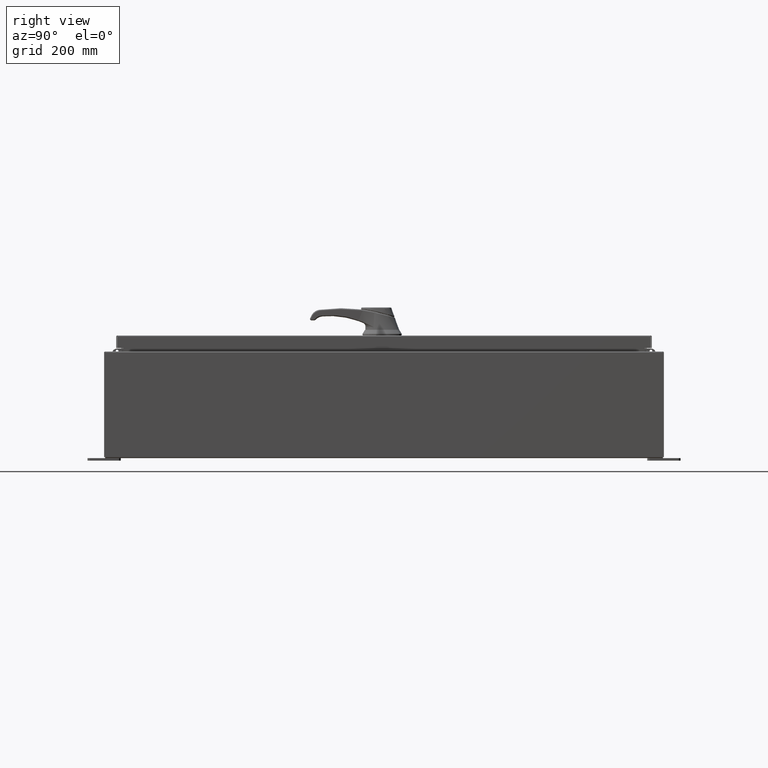
[diagram: clean part render]
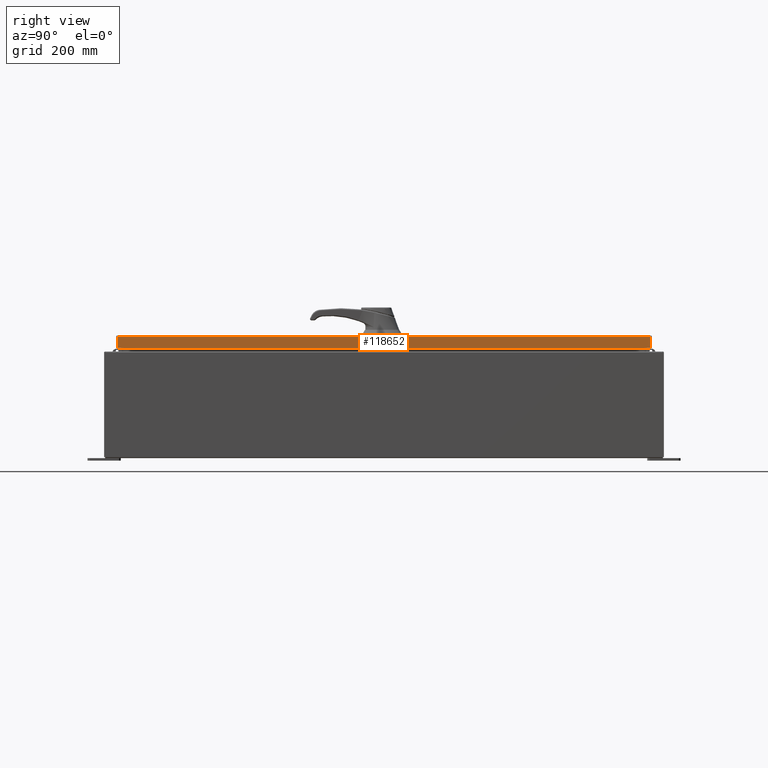
[diagram: same view with one face highlighted and labeled with its STEP entity id]
A machine part, right view. The second image highlights one B-rep face of the part: STEP entity #118652.
In plain terms, the highlighted planar face has unit normal (1, 0, 0).
Its self-contained STEP definition (entity closure, byte-faithful):
#2433 = DIRECTION ( 'NONE',  ( -2.532419924601866100E-015, -6.982962677686265900E-015, 1.000000000000000000 ) ) ;
#8900 = EDGE_LOOP ( 'NONE', ( #101254, #18196, #57315, #98028 ) ) ;
#13450 = LINE ( 'NONE', #17856, #92841 ) ;
#15176 = VECTOR ( 'NONE', #110375, 39.37007874015748100 ) ;
#17856 = CARTESIAN_POINT ( 'NONE',  ( 14.07800000000000300, 0.0000000000000000000, -0.08770000000000008300 ) ) ;
#18196 = ORIENTED_EDGE ( 'NONE', *, *, #108027, .F. ) ;
#21415 = DIRECTION ( 'NONE',  ( 1.000000000000000000, 0.0000000000000000000, 2.532419924601866100E-015 ) ) ;
#24658 = EDGE_CURVE ( 'NONE', #81442, #92699, #75201, .T. ) ;
#25853 = DIRECTION ( 'NONE',  ( 0.0000000000000000000, -1.000000000000000000, 0.0000000000000000000 ) ) ;
#35575 = EDGE_CURVE ( 'NONE', #92699, #48750, #13450, .T. ) ;
#40937 = CARTESIAN_POINT ( 'NONE',  ( 14.07800000000000300, 0.0000000000000000000, 3.591222135455665100E-014 ) ) ;
#41551 = LINE ( 'NONE', #80429, #15176 ) ;
#48720 = VECTOR ( 'NONE', #2433, 39.37007874015748100 ) ;
#48750 = VERTEX_POINT ( 'NONE', #75765 ) ;
#57315 = ORIENTED_EDGE ( 'NONE', *, *, #24658, .T. ) ;
#60993 = PLANE ( 'NONE',  #87908 ) ;
#72225 = VECTOR ( 'NONE', #25853, 39.37007874015748100 ) ;
#75201 = LINE ( 'NONE', #101493, #48720 ) ;
#75765 = CARTESIAN_POINT ( 'NONE',  ( 14.07800000000000300, -20.00515786437628000, -0.08770000000000008300 ) ) ;
#77390 = DIRECTION ( 'NONE',  ( 0.0000000000000000000, -1.000000000000000000, 0.0000000000000000000 ) ) ;
#80429 = CARTESIAN_POINT ( 'NONE',  ( 14.07800000000000300, -20.00515786437628000, -0.07469999999999980800 ) ) ;
#81442 = VERTEX_POINT ( 'NONE', #122988 ) ;
#85461 = CARTESIAN_POINT ( 'NONE',  ( 14.07800000000000500, -20.09400000000000800, -0.9376999999999997600 ) ) ;
#87908 = AXIS2_PLACEMENT_3D ( 'NONE', #40937, #21415, #91019 ) ;
#91019 = DIRECTION ( 'NONE',  ( 2.532419924601866100E-015, 0.0000000000000000000, -1.000000000000000000 ) ) ;
#92699 = VERTEX_POINT ( 'NONE', #106795 ) ;
#92841 = VECTOR ( 'NONE', #77390, 39.37007874015748100 ) ;
#98028 = ORIENTED_EDGE ( 'NONE', *, *, #35575, .T. ) ;
#101254 = ORIENTED_EDGE ( 'NONE', *, *, #120007, .F. ) ;
#101493 = CARTESIAN_POINT ( 'NONE',  ( 14.07800000000000300, 20.00515786437626900, 1.756074920827180500E-013 ) ) ;
#106795 = CARTESIAN_POINT ( 'NONE',  ( 14.07800000000000300, 20.00515786437626900, -0.08770000000000008300 ) ) ;
#108027 = EDGE_CURVE ( 'NONE', #81442, #127879, #121942, .T. ) ;
#110375 = DIRECTION ( 'NONE',  ( -2.532419924601866100E-015, -6.982962677686265900E-015, 1.000000000000000000 ) ) ;
#118652 = ADVANCED_FACE ( 'NONE', ( #128835 ), #60993, .T. ) ;
#120007 = EDGE_CURVE ( 'NONE', #127879, #48750, #41551, .T. ) ;
#121942 = LINE ( 'NONE', #85461, #72225 ) ;
#122988 = CARTESIAN_POINT ( 'NONE',  ( 14.07800000000000500, 20.00515786437627200, -0.9376999999999997600 ) ) ;
#125585 = CARTESIAN_POINT ( 'NONE',  ( 14.07800000000000500, -20.00515786437627200, -0.9376999999999997600 ) ) ;
#127879 = VERTEX_POINT ( 'NONE', #125585 ) ;
#128835 = FACE_OUTER_BOUND ( 'NONE', #8900, .T. ) ;